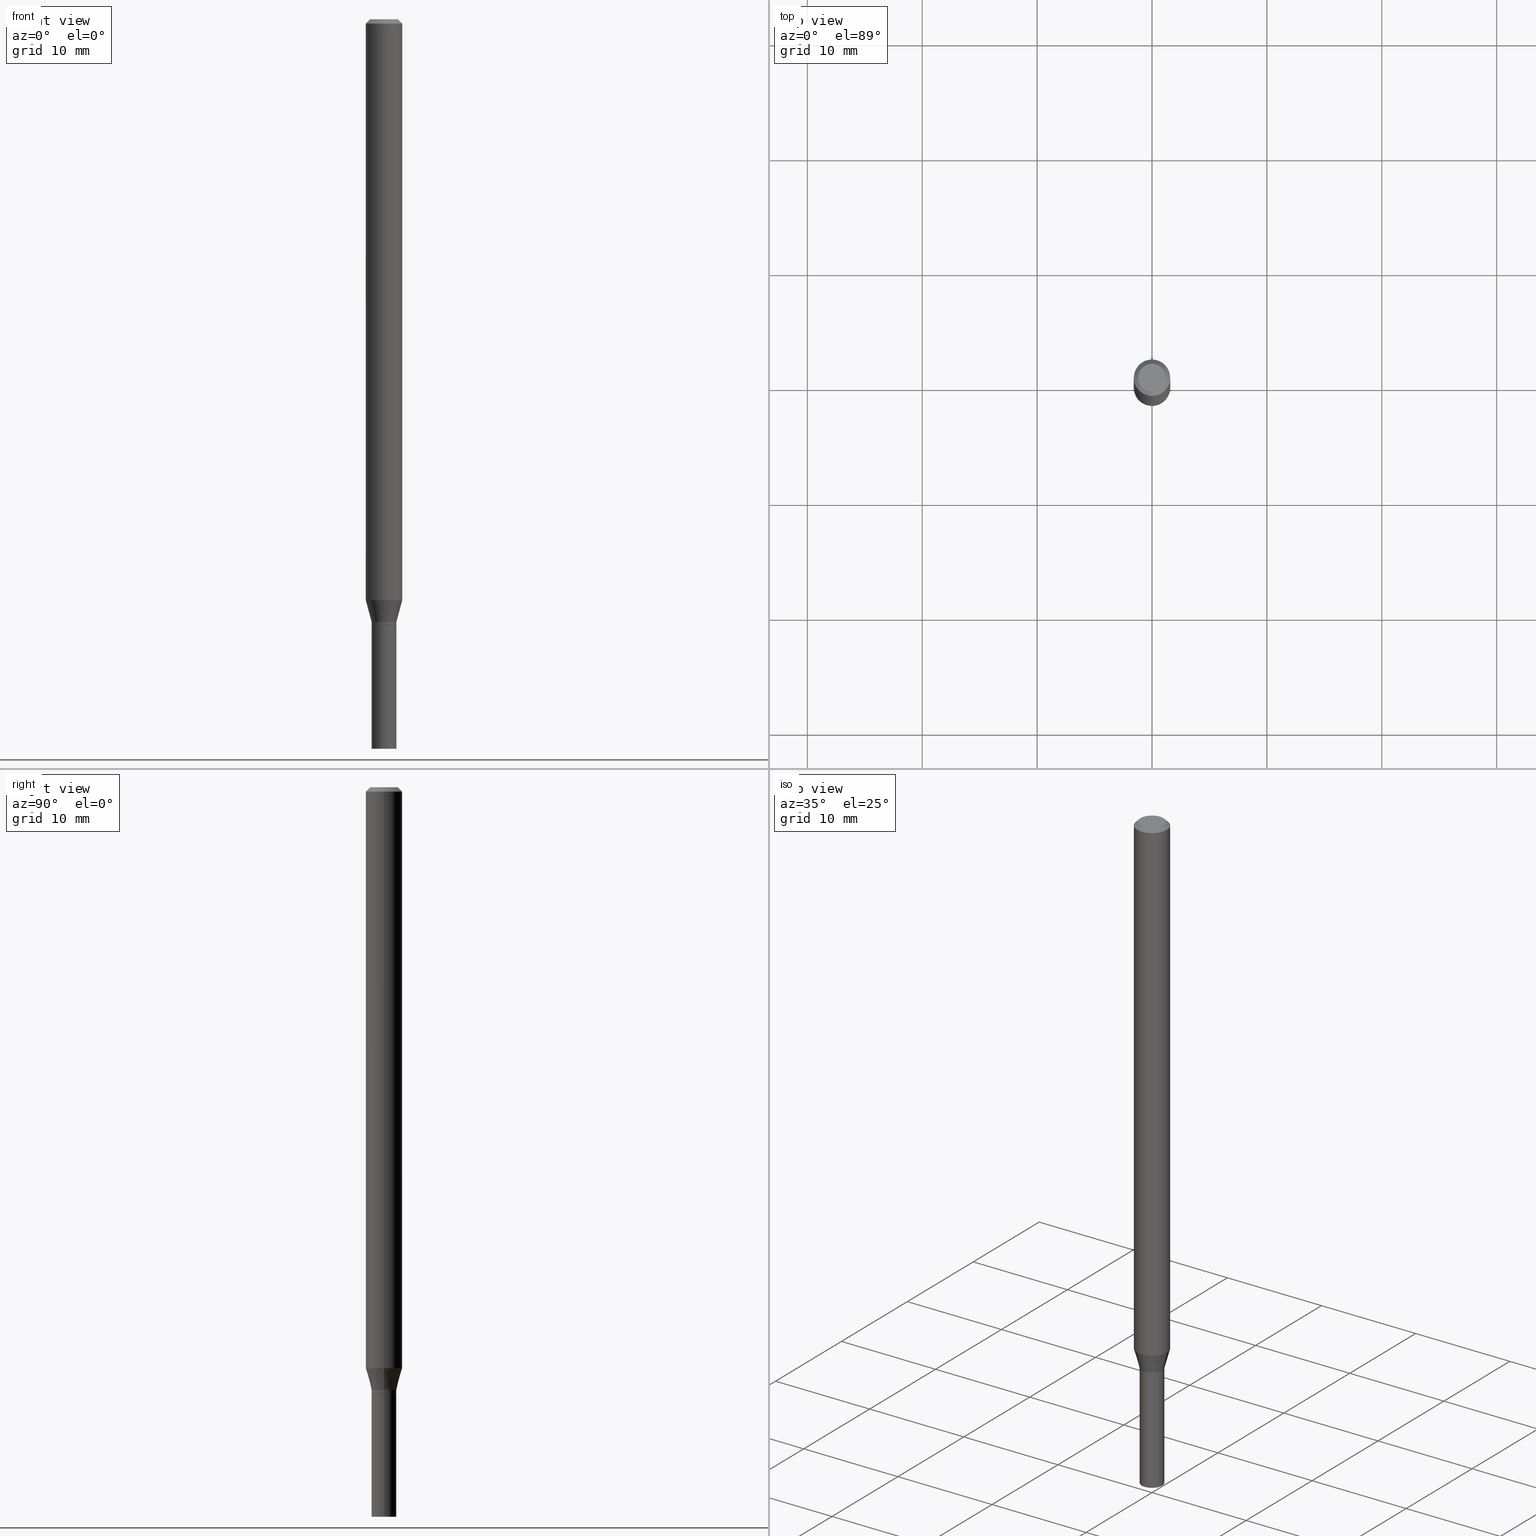
[diagram: canonical four-view strip — front | top / right | iso, engineering-drawing reading convention]
A machine part, canonical four-view strip (front | top / right | iso — engineering-drawing reading convention). The complete STEP part file that produces these views, byte-faithful:
ISO-10303-21;
HEADER;
FILE_DESCRIPTION (( 'STEP AP203' ),
    '1' );
FILE_NAME ('00603.STEP',
    '2024-03-19T21:58:56',
    ( '' ),
    ( '' ),
    'SwSTEP 2.0',
    'SolidWorks 2023',
    '' );
FILE_SCHEMA (( 'CONFIG_CONTROL_DESIGN' ));
ENDSEC;

DATA;
#1 = VECTOR ( 'NONE', #4, 39.37007874015748854 ) ;
#2 = DIRECTION ( 'NONE',  ( -2.445468806185136597E-29, 3.491481338843145583E-15, 1.000000000000000000 ) ) ;
#3 = LINE ( 'NONE', #148, #1 ) ;
#4 = DIRECTION ( 'NONE',  ( -0.2588190451025212391, 5.211531920934549464E-15, 0.9659258262890679791 ) ) ;
#5 = ORIENTED_EDGE ( 'NONE', *, *, #236, .F. ) ;
#6 = DIRECTION ( 'NONE',  ( 1.000000000000000000, -6.982962677686276177E-15, 0.000000000000000000 ) ) ;
#7 = CIRCLE ( 'NONE', #415, 0.06250000000000000000 ) ;
#8 = EDGE_CURVE ( 'NONE', #412, #210, #327, .T. ) ;
#9 = CARTESIAN_POINT ( 'NONE',  ( 4.867360808112149424E-29, -6.949301249706266959E-15, -1.990358983848621310 ) ) ;
#10 = DIMENSIONAL_EXPONENTS ( 1.000000000000000000, 0.000000000000000000, 0.000000000000000000, 0.000000000000000000, 0.000000000000000000, 0.000000000000000000, 0.000000000000000000 ) ;
#11 = CARTESIAN_POINT ( 'NONE',  ( 0.04249999999999991979, -2.967759138016658126E-16, 2.072375129713268648E-30 ) ) ;
#12 = ADVANCED_FACE ( 'NONE', ( #108 ), #282, .F. ) ;
#13 = DATE_AND_TIME ( #345, #347 ) ;
#14 = AXIS2_PLACEMENT_3D ( 'NONE', #295, #402, #326 ) ;
#15 = COORDINATED_UNIVERSAL_TIME_OFFSET ( 5, 0, .BEHIND. ) ;
#16 = CC_DESIGN_DATE_AND_TIME_ASSIGNMENT ( #452, #417, ( #103 ) ) ;
#17 = APPROVAL_STATUS ( 'not_yet_approved' ) ;
#18 = EDGE_LOOP ( 'NONE', ( #433, #146, #126, #177 ) ) ;
#19 = DIRECTION ( 'NONE',  ( -2.445468806185136597E-29, 3.491481338843145583E-15, 1.000000000000000000 ) ) ;
#20 = DATE_AND_TIME ( #59, #426 ) ;
#21 = EDGE_LOOP ( 'NONE', ( #319, #381 ) ) ;
#22 = EDGE_CURVE ( 'NONE', #412, #453, #354, .T. ) ;
#23 = CONICAL_SURFACE ( 'NONE', #45, 0.04199999999999999567, 0.7853981633980202659 ) ;
#24 = CONICAL_SURFACE ( 'NONE', #337, 0.06250000000000000000, 0.7853981633974512766 ) ;
#25 = FACE_OUTER_BOUND ( 'NONE', #362, .T. ) ;
#26 = CARTESIAN_POINT ( 'NONE',  ( 0.000000000000000000, 0.000000000000000000, 0.000000000000000000 ) ) ;
#27 = ORIENTED_EDGE ( 'NONE', *, *, #74, .T. ) ;
#28 = DIRECTION ( 'NONE',  ( 1.000000000000000000, -6.982962677686266711E-15, 0.000000000000000000 ) ) ;
#29 = DIRECTION ( 'NONE',  ( -2.445468806185136597E-29, 3.491481338843145583E-15, 1.000000000000000000 ) ) ;
#30 = AXIS2_PLACEMENT_3D ( 'NONE', #72, #213, #438 ) ;
#31 = AXIS2_PLACEMENT_3D ( 'NONE', #249, #119, #290 ) ;
#32 = CARTESIAN_POINT ( 'NONE',  ( 5.074347772834158663E-29, -7.244823778099526956E-15, -2.075000000000000178 ) ) ;
#33 = ADVANCED_FACE ( 'NONE', ( #356 ), #428, .F. ) ;
#34 = ORIENTED_EDGE ( 'NONE', *, *, #389, .F. ) ;
#35 = EDGE_LOOP ( 'NONE', ( #343, #66, #240, #376 ) ) ;
#36 = CARTESIAN_POINT ( 'NONE',  ( 0.06250000000000000000, -4.888073874380388472E-16, -0.01499999999999999944 ) ) ;
#37 = PRODUCT_RELATED_PRODUCT_CATEGORY ( 'detail', '', ( #201 ) ) ;
#38 = CC_DESIGN_APPROVAL ( #437, ( #83 ) ) ;
#39 = DIRECTION ( 'NONE',  ( 1.000000000000000000, -6.982962677686276177E-15, 0.000000000000000000 ) ) ;
#40 = EDGE_CURVE ( 'NONE', #341, #143, #175, .T. ) ;
#41 = CARTESIAN_POINT ( 'NONE',  ( -0.04249999999999999611, -7.684782899905652708E-15, -2.075000000000000178 ) ) ;
#42 = DIRECTION ( 'NONE',  ( -2.445468806185136597E-29, 3.491481338843145583E-15, 1.000000000000000000 ) ) ;
#43 = CARTESIAN_POINT ( 'NONE',  ( -0.04199999999999999567, -6.946395829080283824E-15, -2.074999999999999734 ) ) ;
#44 = APPLICATION_PROTOCOL_DEFINITION ( 'international standard', 'config_control_design', 1994, #178 ) ;
#45 = AXIS2_PLACEMENT_3D ( 'NONE', #102, #358, #390 ) ;
#46 = VERTEX_POINT ( 'NONE', #424 ) ;
#47 = CC_DESIGN_APPROVAL ( #76, ( #120 ) ) ;
#48 = FACE_OUTER_BOUND ( 'NONE', #77, .T. ) ;
#49 = LENGTH_MEASURE_WITH_UNIT ( LENGTH_MEASURE( 0.02539999999999999897 ), #441 );
#50 = EDGE_CURVE ( 'NONE', #446, #260, #7, .T. ) ;
#51 = DATE_AND_TIME ( #90, #216 ) ;
#52 = ORIENTED_EDGE ( 'NONE', *, *, #138, .T. ) ;
#53 = AXIS2_PLACEMENT_3D ( 'NONE', #9, #318, #254 ) ;
#54 = AXIS2_PLACEMENT_3D ( 'NONE', #401, #42, #6 ) ;
#55 = ADVANCED_FACE ( 'NONE', ( #463 ), #23, .T. ) ;
#56 = CARTESIAN_POINT ( 'NONE',  ( 3.668203209277705088E-31, -5.237222008264718399E-17, -0.01499999999999999944 ) ) ;
#57 = DIRECTION ( 'NONE',  ( 2.445468806185136597E-29, -3.491481338843145583E-15, -1.000000000000000000 ) ) ;
#58 = ORIENTED_EDGE ( 'NONE', *, *, #154, .T. ) ;
#59 = CALENDAR_DATE ( 2024, 19, 3 ) ;
#60 = EDGE_LOOP ( 'NONE', ( #217, #331, #197, #340 ) ) ;
#61 = AXIS2_PLACEMENT_3D ( 'NONE', #79, #365, #257 ) ;
#62 = DIRECTION ( 'NONE',  ( -2.445468806185136877E-29, 3.491481338843145188E-15, 1.000000000000000000 ) ) ;
#63 = CIRCLE ( 'NONE', #328, 0.04749999999999999362 ) ;
#64 = DIRECTION ( 'NONE',  ( 1.000000000000000000, -6.982962677686265922E-15, 4.876176775795935793E-29 ) ) ;
#65 = EDGE_CURVE ( 'NONE', #158, #446, #139, .T. ) ;
#66 = ORIENTED_EDGE ( 'NONE', *, *, #243, .T. ) ;
#67 = DIRECTION ( 'NONE',  ( -0.7071067811865496822, 2.468850131082278754E-15, -0.7071067811865454633 ) ) ;
#68 = MANIFOLD_SOLID_BREP ( 'Body-Move/Copy2[2]', #299 ) ;
#69 = EDGE_CURVE ( 'NONE', #210, #412, #187, .T. ) ;
#70 = CARTESIAN_POINT ( 'NONE',  ( 0.06250000000000000000, -4.364351673553916694E-16, 3.047610484872459871E-30 ) ) ;
#71 = EDGE_CURVE ( 'NONE', #97, #143, #408, .T. ) ;
#72 = CARTESIAN_POINT ( 'NONE',  ( 5.073125038431066982E-29, -7.243078037430106241E-15, -2.074500000000000011 ) ) ;
#73 = CARTESIAN_POINT ( 'NONE',  ( 0.04749999999999999362, -4.035134999187580102E-16, -8.451572774957450897E-17 ) ) ;
#74 = EDGE_CURVE ( 'NONE', #245, #260, #242, .T. ) ;
#75 = PLANE ( 'NONE',  #61 ) ;
#76 = APPROVAL ( #17, 'UNSPECIFIED' ) ;
#77 = EDGE_LOOP ( 'NONE', ( #268, #199, #266, #5 ) ) ;
#78 = CARTESIAN_POINT ( 'NONE',  ( -0.04250000000000019734, -6.941097374732062211E-15, -2.074500000000000011 ) ) ;
#79 = CARTESIAN_POINT ( 'NONE',  ( 3.316907271900976096E-16, 0.04749999999999999362, -2.081032274698379328E-16 ) ) ;
#80 = CARTESIAN_POINT ( 'NONE',  ( 2.066805758436263276E-45, -2.950850862763961857E-31, -8.451572774957708509E-17 ) ) ;
#81 = DIRECTION ( 'NONE',  ( 1.000000000000000000, -6.982962677686263555E-15, 0.000000000000000000 ) ) ;
#82 = CARTESIAN_POINT ( 'NONE',  ( 0.04250000000000019734, -7.539853951231772892E-15, -2.074500000000000011 ) ) ;
#83 = PRODUCT_DEFINITION_FORMATION_WITH_SPECIFIED_SOURCE ( 'ANY', '', #201, .NOT_KNOWN. ) ;
#84 = ORIENTED_EDGE ( 'NONE', *, *, #179, .F. ) ;
#85 = EDGE_LOOP ( 'NONE', ( #121, #449 ) ) ;
#86 = PERSON_AND_ORGANIZATION_ROLE ( 'creator' ) ;
#87 = DIRECTION ( 'NONE',  ( -2.445468806185136597E-29, 3.491481338843145583E-15, 1.000000000000000000 ) ) ;
#88 = ORIENTED_EDGE ( 'NONE', *, *, #350, .F. ) ;
#89 = CYLINDRICAL_SURFACE ( 'NONE', #432, 0.04249999999999991979 ) ;
#90 = CALENDAR_DATE ( 2024, 19, 3 ) ;
#91 = DIRECTION ( 'NONE',  ( -2.445468806185136877E-29, 3.491481338843145188E-15, 1.000000000000000000 ) ) ;
#92 = VECTOR ( 'NONE', #405, 39.37007874015748143 ) ;
#93 = VECTOR ( 'NONE', #91, 39.37007874015748143 ) ;
#94 = PERSON_AND_ORGANIZATION ( #135, #289 ) ;
#95 = VERTEX_POINT ( 'NONE', #359 ) ;
#96 = DIRECTION ( 'NONE',  ( 1.000000000000000000, -6.982962677686266711E-15, 0.000000000000000000 ) ) ;
#97 = VERTEX_POINT ( 'NONE', #136 ) ;
#98 = PERSON_AND_ORGANIZATION ( #135, #289 ) ;
#99 = PERSON_AND_ORGANIZATION ( #135, #289 ) ;
#100 = CARTESIAN_POINT ( 'NONE',  ( 0.000000000000000000, 0.000000000000000000, 0.000000000000000000 ) ) ;
#101 = ADVANCED_FACE ( 'NONE', ( #316 ), #237, .T. ) ;
#102 = CARTESIAN_POINT ( 'NONE',  ( 5.074347772834157541E-29, -7.244823778099525378E-15, -2.074999999999999734 ) ) ;
#103 = PRODUCT_DEFINITION ( 'UNKNOWN', '', #83, #309 ) ;
#104 = DIRECTION ( 'NONE',  ( -2.445468806185136877E-29, 3.491481338843145188E-15, 1.000000000000000000 ) ) ;
#105 = DIRECTION ( 'NONE',  ( -2.438088387897960049E-29, 3.491481338843145188E-15, 1.000000000000000000 ) ) ;
#106 = DIRECTION ( 'NONE',  ( 1.000000000000000000, -6.982962677686264344E-15, 0.000000000000000000 ) ) ;
#107 = CC_DESIGN_PERSON_AND_ORGANIZATION_ASSIGNMENT ( #227, #86, ( #83 ) ) ;
#108 = FACE_OUTER_BOUND ( 'NONE', #353, .T. ) ;
#109 = EDGE_LOOP ( 'NONE', ( #396, #200, #262, #264 ) ) ;
#110 = CARTESIAN_POINT ( 'NONE',  ( 0.000000000000000000, 0.000000000000000000, 0.000000000000000000 ) ) ;
#111 = ORIENTED_EDGE ( 'NONE', *, *, #138, .F. ) ;
#112 = DIRECTION ( 'NONE',  ( 1.000000000000000000, -6.982962677686263555E-15, 0.000000000000000000 ) ) ;
#113 = CLOSED_SHELL ( 'NONE', ( #261, #131, #118, #12 ) ) ;
#114 = AXIS2_PLACEMENT_3D ( 'NONE', #223, #218, #367 ) ;
#115 = DIRECTION ( 'NONE',  ( -2.445468806185136877E-29, 3.491481338843145188E-15, 1.000000000000000000 ) ) ;
#116 = DIRECTION ( 'NONE',  ( 1.000000000000000000, -6.982962677686263555E-15, 0.000000000000000000 ) ) ;
#117 = DIRECTION ( 'NONE',  ( 1.000000000000000000, -6.982962677686265922E-15, 4.876176775795935793E-29 ) ) ;
#118 = ADVANCED_FACE ( 'NONE', ( #207 ), #238, .T. ) ;
#119 = DIRECTION ( 'NONE',  ( -2.445468806185136597E-29, 3.491481338843145583E-15, 1.000000000000000000 ) ) ;
#120 = SECURITY_CLASSIFICATION ( '', '', #193 ) ;
#121 = ORIENTED_EDGE ( 'NONE', *, *, #357, .T. ) ;
#122 = EDGE_CURVE ( 'NONE', #143, #97, #391, .T. ) ;
#123 = EDGE_LOOP ( 'NONE', ( #397, #313, #301, #88 ) ) ;
#124 = CALENDAR_DATE ( 2024, 19, 3 ) ;
#125 = CARTESIAN_POINT ( 'NONE',  ( 2.066805758436263276E-45, -2.950850862763961857E-31, -8.451572774957708509E-17 ) ) ;
#126 = ORIENTED_EDGE ( 'NONE', *, *, #429, .T. ) ;
#127 = CARTESIAN_POINT ( 'NONE',  ( -0.06250000000000000000, 4.440892098500626162E-16, -3.074334431409316114E-30 ) ) ;
#128 = DIRECTION ( 'NONE',  ( -2.445468806185136597E-29, 3.491481338843145583E-15, 1.000000000000000000 ) ) ;
#129 = ADVANCED_BREP_SHAPE_REPRESENTATION ( '00603', ( #222, #68, #198 ), #162 ) ;
#130 = PRODUCT_DEFINITION_SHAPE ( 'NONE', 'NONE',  #103 ) ;
#131 = ADVANCED_FACE ( 'NONE', ( #460 ), #214, .F. ) ;
#132 = CARTESIAN_POINT ( 'NONE',  ( 0.04249999999999999611, -9.025479260909530016E-15, -2.500000000000000000 ) ) ;
#133 = CARTESIAN_POINT ( 'NONE',  ( 2.967759138017170885E-16, 0.04249999999999275191, -2.075000000000000622 ) ) ;
#134 = AXIS2_PLACEMENT_3D ( 'NONE', #155, #444, #116 ) ;
#135 = PERSON ( 'UNSPECIFIED', 'UNSPECIFIED', 'UNSPECIFIED', ('UNSPECIFIED'), ('UNSPECIFIED'), ('UNSPECIFIED') ) ;
#136 = CARTESIAN_POINT ( 'NONE',  ( 0.04249999999999964917, -7.506684878512758802E-15, -2.064999999999999947 ) ) ;
#137 = AXIS2_PLACEMENT_3D ( 'NONE', #110, #247, #395 ) ;
#138 = EDGE_CURVE ( 'NONE', #143, #393, #3, .T. ) ;
#139 = LINE ( 'NONE', #427, #303 ) ;
#140 = DIRECTION ( 'NONE',  ( 1.000000000000000000, -6.982962677686254089E-15, 0.000000000000000000 ) ) ;
#141 = CC_DESIGN_PERSON_AND_ORGANIZATION_ASSIGNMENT ( #98, #333, ( #120 ) ) ;
#142 = DIRECTION ( 'NONE',  ( -2.445468806185136597E-29, 3.491481338843145583E-15, 1.000000000000000000 ) ) ;
#143 = VERTEX_POINT ( 'NONE', #288 ) ;
#144 = CC_DESIGN_SECURITY_CLASSIFICATION ( #120, ( #83 ) ) ;
#145 = LINE ( 'NONE', #440, #252 ) ;
#146 = ORIENTED_EDGE ( 'NONE', *, *, #332, .T. ) ;
#147 = FACE_OUTER_BOUND ( 'NONE', #18, .T. ) ;
#148 = CARTESIAN_POINT ( 'NONE',  ( -0.04249999999999964917, -6.907928302013055220E-15, -2.064999999999999947 ) ) ;
#149 = VECTOR ( 'NONE', #186, 39.37007874015748854 ) ;
#150 = DIRECTION ( 'NONE',  ( 1.000000000000000000, -6.982962677686266711E-15, 4.876176775795935793E-29 ) ) ;
#151 = ORIENTED_EDGE ( 'NONE', *, *, #357, .F. ) ;
#152 = CYLINDRICAL_SURFACE ( 'NONE', #259, 0.06250000000000000000 ) ;
#153 = CARTESIAN_POINT ( 'NONE',  ( 0.06250000000000000000, -7.385736417061658629E-15, -1.990358983848621310 ) ) ;
#154 = EDGE_CURVE ( 'NONE', #95, #334, #145, .T. ) ;
#155 = CARTESIAN_POINT ( 'NONE',  ( 5.074347772834157541E-29, -7.244823778099525378E-15, -2.074999999999999734 ) ) ;
#156 = ADVANCED_FACE ( 'NONE', ( #286 ), #363, .T. ) ;
#157 = CARTESIAN_POINT ( 'NONE',  ( 0.000000000000000000, 0.000000000000000000, 0.000000000000000000 ) ) ;
#158 = VERTEX_POINT ( 'NONE', #220 ) ;
#159 = COORDINATED_UNIVERSAL_TIME_OFFSET ( 5, 0, .BEHIND. ) ;
#160 = EDGE_CURVE ( 'NONE', #95, #46, #275, .T. ) ;
#161 = EDGE_LOOP ( 'NONE', ( #225, #151, #250, #291 ) ) ;
#162 =( GEOMETRIC_REPRESENTATION_CONTEXT ( 3 ) GLOBAL_UNCERTAINTY_ASSIGNED_CONTEXT ( ( #443 ) ) GLOBAL_UNIT_ASSIGNED_CONTEXT ( ( #285, #182, #322 ) ) REPRESENTATION_CONTEXT ( 'NONE', 'WORKASPACE' ) );
#163 = EDGE_CURVE ( 'NONE', #334, #341, #398, .T. ) ;
#164 = ORIENTED_EDGE ( 'NONE', *, *, #450, .F. ) ;
#165 = ORIENTED_EDGE ( 'NONE', *, *, #202, .F. ) ;
#166 = AXIS2_PLACEMENT_3D ( 'NONE', #80, #87, #418 ) ;
#167 = PERSON_AND_ORGANIZATION_ROLE ( 'design_owner' ) ;
#168 = DIRECTION ( 'NONE',  ( 0.2588190451025212391, 1.565188264969622362E-15, 0.9659258262890679791 ) ) ;
#169 = DIRECTION ( 'NONE',  ( -2.445468806185136597E-29, 3.491481338843145583E-15, 1.000000000000000000 ) ) ;
#170 = CARTESIAN_POINT ( 'NONE',  ( 3.668203209277705088E-31, -5.237222008264718399E-17, -0.01499999999999999944 ) ) ;
#171 = ADVANCED_FACE ( 'NONE', ( #321 ), #75, .F. ) ;
#172 = AXIS2_PLACEMENT_3D ( 'NONE', #372, #370, #330 ) ;
#173 = DIRECTION ( 'NONE',  ( 1.000000000000000000, -6.982962677686264344E-15, 0.000000000000000000 ) ) ;
#174 = CARTESIAN_POINT ( 'NONE',  ( 6.113672015462842613E-29, -8.728703347107864943E-15, -2.500000000000000000 ) ) ;
#175 = LINE ( 'NONE', #310, #270 ) ;
#176 = CARTESIAN_POINT ( 'NONE',  ( 6.198122052593289668E-29, -8.607766087339451973E-15, -2.500000000000000000 ) ) ;
#177 = ORIENTED_EDGE ( 'NONE', *, *, #65, .F. ) ;
#178 = APPLICATION_CONTEXT ( 'configuration controlled 3d designs of mechanical parts and assemblies' ) ;
#179 = EDGE_CURVE ( 'NONE', #393, #245, #196, .T. ) ;
#180 = CARTESIAN_POINT ( 'NONE',  ( 5.074347772834157541E-29, -7.244823778099525378E-15, -2.074999999999999734 ) ) ;
#181 = CC_DESIGN_PERSON_AND_ORGANIZATION_ASSIGNMENT ( #99, #167, ( #201 ) ) ;
#182 =( NAMED_UNIT ( * ) PLANE_ANGLE_UNIT ( ) SI_UNIT ( $, .RADIAN. ) );
#183 = LINE ( 'NONE', #323, #224 ) ;
#184 = DIRECTION ( 'NONE',  ( 0.7071067811869518049, -2.468850131086492060E-15, 0.7071067811861430075 ) ) ;
#185 = CARTESIAN_POINT ( 'NONE',  ( 0.000000000000000000, 0.000000000000000000, 0.000000000000000000 ) ) ;
#186 = DIRECTION ( 'NONE',  ( -0.7071067811869518049, 7.493145998871813553E-15, 0.7071067811861430075 ) ) ;
#187 = CIRCLE ( 'NONE', #280, 0.04249999999999999611 ) ;
#188 = VECTOR ( 'NONE', #292, 39.37007874015748143 ) ;
#189 = DIRECTION ( 'NONE',  ( 0.000000000000000000, 0.000000000000000000, 1.000000000000000000 ) ) ;
#190 = CONICAL_SURFACE ( 'NONE', #392, 0.04199999999999999567, 0.7853981633980202659 ) ;
#191 = FACE_OUTER_BOUND ( 'NONE', #349, .T. ) ;
#192 = VERTEX_POINT ( 'NONE', #73 ) ;
#193 = SECURITY_CLASSIFICATION_LEVEL ( 'unclassified' ) ;
#194 = ORIENTED_EDGE ( 'NONE', *, *, #202, .T. ) ;
#195 = CALENDAR_DATE ( 2024, 19, 3 ) ;
#196 = CIRCLE ( 'NONE', #53, 0.06250000000000000000 ) ;
#197 = ORIENTED_EDGE ( 'NONE', *, *, #236, .T. ) ;
#198 = AXIS2_PLACEMENT_3D ( 'NONE', #185, #189, #329 ) ;
#199 = ORIENTED_EDGE ( 'NONE', *, *, #40, .T. ) ;
#200 = ORIENTED_EDGE ( 'NONE', *, *, #389, .T. ) ;
#201 = PRODUCT ( '00603', '00603', '', ( #406 ) ) ;
#202 = EDGE_CURVE ( 'NONE', #453, #204, #311, .T. ) ;
#203 = APPROVAL_STATUS ( 'not_yet_approved' ) ;
#204 = VERTEX_POINT ( 'NONE', #41 ) ;
#205 = AXIS2_PLACEMENT_3D ( 'NONE', #465, #142, #384 ) ;
#206 = CIRCLE ( 'NONE', #166, 0.04749999999999999362 ) ;
#207 = FACE_OUTER_BOUND ( 'NONE', #123, .T. ) ;
#208 = DIRECTION ( 'NONE',  ( 2.438088387897960049E-29, -3.491481338843145188E-15, -1.000000000000000000 ) ) ;
#209 = EDGE_LOOP ( 'NONE', ( #34, #294, #27, #348 ) ) ;
#210 = VERTEX_POINT ( 'NONE', #394 ) ;
#211 = LOCAL_TIME ( 17, 58, 56.00000000000000000, #15 ) ;
#212 = DIRECTION ( 'NONE',  ( -2.445468806185136877E-29, 3.491481338843145188E-15, 1.000000000000000000 ) ) ;
#213 = DIRECTION ( 'NONE',  ( -2.445468806185136597E-29, 3.491481338843145583E-15, 1.000000000000000000 ) ) ;
#214 = PLANE ( 'NONE',  #258 ) ;
#215 = AXIS2_PLACEMENT_3D ( 'NONE', #461, #430, #106 ) ;
#216 = LOCAL_TIME ( 17, 58, 56.00000000000000000, #234 ) ;
#217 = ORIENTED_EDGE ( 'NONE', *, *, #40, .F. ) ;
#218 = DIRECTION ( 'NONE',  ( 2.445468806185136597E-29, -3.491481338843145583E-15, -1.000000000000000000 ) ) ;
#219 = ORIENTED_EDGE ( 'NONE', *, *, #71, .T. ) ;
#220 = CARTESIAN_POINT ( 'NONE',  ( -0.04749999999999999362, 3.578768372314209027E-16, -8.451572774957950098E-17 ) ) ;
#221 = CARTESIAN_POINT ( 'NONE',  ( -0.06250000000000000000, -3.056747525044394995E-15, -0.01499999999999999944 ) ) ;
#222 = MANIFOLD_SOLID_BREP ( 'Body-Move/Copy2[1]', #113 ) ;
#223 = CARTESIAN_POINT ( 'NONE',  ( 3.668203209277705088E-31, -5.237222008264718399E-17, -0.01499999999999999944 ) ) ;
#224 = VECTOR ( 'NONE', #115, 39.37007874015748143 ) ;
#225 = ORIENTED_EDGE ( 'NONE', *, *, #332, .F. ) ;
#226 = PERSON_AND_ORGANIZATION_ROLE ( 'creator' ) ;
#227 = PERSON_AND_ORGANIZATION ( #135, #289 ) ;
#228 = CIRCLE ( 'NONE', #30, 0.04250000000000019734 ) ;
#229 = DIRECTION ( 'NONE',  ( -2.445468806185136597E-29, 3.491481338843145583E-15, 1.000000000000000000 ) ) ;
#230 = VECTOR ( 'NONE', #168, 39.37007874015748854 ) ;
#231 = APPROVAL_ROLE ( '' ) ;
#232 = EDGE_CURVE ( 'NONE', #341, #334, #228, .T. ) ;
#233 = ORIENTED_EDGE ( 'NONE', *, *, #410, .T. ) ;
#234 = COORDINATED_UNIVERSAL_TIME_OFFSET ( 5, 0, .BEHIND. ) ;
#235 = DIRECTION ( 'NONE',  ( -2.445468806185136597E-29, 3.491481338843145583E-15, 1.000000000000000000 ) ) ;
#236 = EDGE_CURVE ( 'NONE', #334, #97, #361, .T. ) ;
#237 = CYLINDRICAL_SURFACE ( 'NONE', #205, 0.04249999999999991979 ) ;
#238 = CYLINDRICAL_SURFACE ( 'NONE', #462, 0.04249999999999999611 ) ;
#239 = CC_DESIGN_PERSON_AND_ORGANIZATION_ASSIGNMENT ( #306, #226, ( #103 ) ) ;
#240 = ORIENTED_EDGE ( 'NONE', *, *, #163, .F. ) ;
#241 = AXIS2_PLACEMENT_3D ( 'NONE', #133, #208, #274 ) ;
#242 = LINE ( 'NONE', #70, #346 ) ;
#243 = EDGE_CURVE ( 'NONE', #46, #341, #284, .T. ) ;
#244 = CARTESIAN_POINT ( 'NONE',  ( 5.074347772834158663E-29, -7.244823778099526956E-15, -2.075000000000000178 ) ) ;
#245 = VERTEX_POINT ( 'NONE', #153 ) ;
#246 = CC_DESIGN_DATE_AND_TIME_ASSIGNMENT ( #13, #382, ( #120 ) ) ;
#247 = DIRECTION ( 'NONE',  ( -2.445468806185136597E-29, 3.491481338843145583E-15, 1.000000000000000000 ) ) ;
#248 = EDGE_LOOP ( 'NONE', ( #420, #466, #165, #380 ) ) ;
#249 = CARTESIAN_POINT ( 'NONE',  ( 4.867360808112149424E-29, -6.949301249706266959E-15, -1.990358983848621310 ) ) ;
#250 = ORIENTED_EDGE ( 'NONE', *, *, #65, .T. ) ;
#251 = DIRECTION ( 'NONE',  ( -2.438088387897960049E-29, 3.491481338843145188E-15, 1.000000000000000000 ) ) ;
#252 = VECTOR ( 'NONE', #184, 39.37007874015748854 ) ;
#253 = CONICAL_SURFACE ( 'NONE', #305, 0.04249999999999964917, 0.2617993877991499629 ) ;
#254 = DIRECTION ( 'NONE',  ( 1.000000000000000000, -6.982962677686262766E-15, 0.000000000000000000 ) ) ;
#255 = CC_DESIGN_PERSON_AND_ORGANIZATION_ASSIGNMENT ( #378, #385, ( #83 ) ) ;
#256 = DIRECTION ( 'NONE',  ( -2.445468806185136597E-29, 3.491481338843145583E-15, 1.000000000000000000 ) ) ;
#257 = DIRECTION ( 'NONE',  ( -1.000000000000000000, 6.982962677686265922E-15, -4.876176775795935793E-29 ) ) ;
#258 = AXIS2_PLACEMENT_3D ( 'NONE', #176, #251, #117 ) ;
#259 = AXIS2_PLACEMENT_3D ( 'NONE', #157, #256, #297 ) ;
#260 = VERTEX_POINT ( 'NONE', #36 ) ;
#261 = ADVANCED_FACE ( 'NONE', ( #435 ), #324, .T. ) ;
#262 = ORIENTED_EDGE ( 'NONE', *, *, #429, .F. ) ;
#263 = PERSON_AND_ORGANIZATION ( #135, #289 ) ;
#264 = ORIENTED_EDGE ( 'NONE', *, *, #74, .F. ) ;
#265 = CARTESIAN_POINT ( 'NONE',  ( 5.049893084772307117E-29, -7.209908964711095307E-15, -2.064999999999999947 ) ) ;
#266 = ORIENTED_EDGE ( 'NONE', *, *, #71, .F. ) ;
#267 = COORDINATED_UNIVERSAL_TIME_OFFSET ( 5, 0, .BEHIND. ) ;
#268 = ORIENTED_EDGE ( 'NONE', *, *, #163, .T. ) ;
#269 = APPROVAL_ROLE ( '' ) ;
#270 = VECTOR ( 'NONE', #212, 39.37007874015748143 ) ;
#271 = APPROVAL_PERSON_ORGANIZATION ( #94, #76, #231 ) ;
#272 = APPROVAL_DATE_TIME ( #51, #283 ) ;
#273 = FACE_OUTER_BOUND ( 'NONE', #109, .T. ) ;
#274 = DIRECTION ( 'NONE',  ( -1.000000000000000000, 6.982962677686265922E-15, -4.876176775795935793E-29 ) ) ;
#275 = CIRCLE ( 'NONE', #134, 0.04199999999999999567 ) ;
#276 = EDGE_CURVE ( 'NONE', #46, #95, #456, .T. ) ;
#277 = CARTESIAN_POINT ( 'NONE',  ( 6.113672015462842613E-29, -8.728703347107864943E-15, -2.500000000000000000 ) ) ;
#278 = DIRECTION ( 'NONE',  ( 1.000000000000000000, -6.982962677686254089E-15, 0.000000000000000000 ) ) ;
#279 = CARTESIAN_POINT ( 'NONE',  ( 0.04249999999999999611, -2.967759138016663549E-16, 2.072375129713272502E-30 ) ) ;
#280 = AXIS2_PLACEMENT_3D ( 'NONE', #174, #315, #140 ) ;
#281 = CC_DESIGN_APPROVAL ( #283, ( #103 ) ) ;
#282 = PLANE ( 'NONE',  #241 ) ;
#283 = APPROVAL ( #203, 'UNSPECIFIED' ) ;
#284 = LINE ( 'NONE', #43, #149 ) ;
#285 =( CONVERSION_BASED_UNIT ( 'INCH', #49 ) LENGTH_UNIT ( ) NAMED_UNIT ( #10 ) );
#286 = FACE_OUTER_BOUND ( 'NONE', #375, .T. ) ;
#287 = DIRECTION ( 'NONE',  ( 1.000000000000000000, -6.982962677686267499E-15, 4.876176775795935232E-29 ) ) ;
#288 = CARTESIAN_POINT ( 'NONE',  ( -0.04249999999999964917, -6.706570170934630176E-15, -2.064999999999999947 ) ) ;
#289 = ORGANIZATION ( 'UNSPECIFIED', 'UNSPECIFIED', '' ) ;
#290 = DIRECTION ( 'NONE',  ( 1.000000000000000000, -6.982962677686262766E-15, 0.000000000000000000 ) ) ;
#291 = ORIENTED_EDGE ( 'NONE', *, *, #50, .T. ) ;
#292 = DIRECTION ( 'NONE',  ( 0.7071067811865496822, -7.319954787623263934E-15, -0.7071067811865454633 ) ) ;
#293 = CARTESIAN_POINT ( 'NONE',  ( 5.074347772834157541E-29, -7.244823778099525378E-15, -2.074999999999999734 ) ) ;
#294 = ORIENTED_EDGE ( 'NONE', *, *, #179, .T. ) ;
#295 = CARTESIAN_POINT ( 'NONE',  ( 5.049893084772307117E-29, -7.209908964711095307E-15, -2.064999999999999947 ) ) ;
#296 = ADVANCED_FACE ( 'NONE', ( #191 ), #190, .T. ) ;
#297 = DIRECTION ( 'NONE',  ( 1.000000000000000000, -6.982962677686266711E-15, 4.876176775795935793E-29 ) ) ;
#298 = ORIENTED_EDGE ( 'NONE', *, *, #160, .F. ) ;
#299 = CLOSED_SHELL ( 'NONE', ( #320, #55, #314, #434, #156, #403, #355, #383, #171, #33, #296, #101 ) ) ;
#300 = APPROVAL_DATE_TIME ( #20, #76 ) ;
#301 = ORIENTED_EDGE ( 'NONE', *, *, #22, .T. ) ;
#302 = LINE ( 'NONE', #344, #230 ) ;
#303 = VECTOR ( 'NONE', #67, 39.37007874015748143 ) ;
#304 = APPROVAL_STATUS ( 'not_yet_approved' ) ;
#305 = AXIS2_PLACEMENT_3D ( 'NONE', #265, #229, #379 ) ;
#306 = PERSON_AND_ORGANIZATION ( #135, #289 ) ;
#307 = LINE ( 'NONE', #127, #93 ) ;
#308 = DIRECTION ( 'NONE',  ( -2.445468806185136597E-29, 3.491481338843145583E-15, 1.000000000000000000 ) ) ;
#309 = DESIGN_CONTEXT ( 'detailed design', #352, 'design' ) ;
#310 = CARTESIAN_POINT ( 'NONE',  ( -0.04249999999999991979, 3.019806626980420090E-16, -2.090547413358331006E-30 ) ) ;
#311 = CIRCLE ( 'NONE', #439, 0.04249999999999999611 ) ;
#312 = AXIS2_PLACEMENT_3D ( 'NONE', #100, #235, #150 ) ;
#313 = ORIENTED_EDGE ( 'NONE', *, *, #69, .T. ) ;
#314 = ADVANCED_FACE ( 'NONE', ( #147 ), #458, .T. ) ;
#315 = DIRECTION ( 'NONE',  ( -2.445468806185136597E-29, 3.491481338843145583E-15, 1.000000000000000000 ) ) ;
#316 = FACE_OUTER_BOUND ( 'NONE', #60, .T. ) ;
#317 = AXIS2_PLACEMENT_3D ( 'NONE', #180, #400, #81 ) ;
#318 = DIRECTION ( 'NONE',  ( -2.445468806185136597E-29, 3.491481338843145583E-15, 1.000000000000000000 ) ) ;
#319 = ORIENTED_EDGE ( 'NONE', *, *, #8, .F. ) ;
#320 = ADVANCED_FACE ( 'NONE', ( #48 ), #89, .T. ) ;
#321 = FACE_OUTER_BOUND ( 'NONE', #85, .T. ) ;
#322 =( NAMED_UNIT ( * ) SI_UNIT ( $, .STERADIAN. ) SOLID_ANGLE_UNIT ( ) );
#323 = CARTESIAN_POINT ( 'NONE',  ( -0.04249999999999999611, 3.019806626980425514E-16, -2.090547413358334859E-30 ) ) ;
#324 = CYLINDRICAL_SURFACE ( 'NONE', #137, 0.04249999999999999611 ) ;
#325 = CARTESIAN_POINT ( 'NONE',  ( 0.06250000000000000000, -4.811533449433679005E-16, -0.01499999999999999944 ) ) ;
#326 = DIRECTION ( 'NONE',  ( 1.000000000000000000, -6.982962677686264344E-15, 0.000000000000000000 ) ) ;
#327 = CIRCLE ( 'NONE', #425, 0.04249999999999999611 ) ;
#328 = AXIS2_PLACEMENT_3D ( 'NONE', #125, #128, #386 ) ;
#329 = DIRECTION ( 'NONE',  ( 1.000000000000000000, 0.000000000000000000, 0.000000000000000000 ) ) ;
#330 = DIRECTION ( 'NONE',  ( 1.000000000000000000, -6.982962677686265922E-15, 0.000000000000000000 ) ) ;
#331 = ORIENTED_EDGE ( 'NONE', *, *, #232, .T. ) ;
#332 = EDGE_CURVE ( 'NONE', #192, #260, #366, .T. ) ;
#333 = PERSON_AND_ORGANIZATION_ROLE ( 'classification_officer' ) ;
#334 = VERTEX_POINT ( 'NONE', #82 ) ;
#335 = ORIENTED_EDGE ( 'NONE', *, *, #276, .F. ) ;
#336 = AXIS2_PLACEMENT_3D ( 'NONE', #388, #308, #173 ) ;
#337 = AXIS2_PLACEMENT_3D ( 'NONE', #455, #57, #414 ) ;
#338 = APPROVAL_DATE_TIME ( #422, #437 ) ;
#339 = EDGE_CURVE ( 'NONE', #210, #204, #183, .T. ) ;
#340 = ORIENTED_EDGE ( 'NONE', *, *, #122, .F. ) ;
#341 = VERTEX_POINT ( 'NONE', #78 ) ;
#342 = PERSON_AND_ORGANIZATION ( #135, #289 ) ;
#343 = ORIENTED_EDGE ( 'NONE', *, *, #160, .T. ) ;
#344 = CARTESIAN_POINT ( 'NONE',  ( 0.04249999999999964917, -7.506684878512758802E-15, -2.064999999999999947 ) ) ;
#345 = CALENDAR_DATE ( 2024, 19, 3 ) ;
#346 = VECTOR ( 'NONE', #62, 39.37007874015748143 ) ;
#347 = LOCAL_TIME ( 17, 58, 56.00000000000000000, #267 ) ;
#348 = ORIENTED_EDGE ( 'NONE', *, *, #50, .F. ) ;
#349 = EDGE_LOOP ( 'NONE', ( #451, #404, #58, #436 ) ) ;
#350 = EDGE_CURVE ( 'NONE', #204, #453, #364, .T. ) ;
#351 = CARTESIAN_POINT ( 'NONE',  ( -0.06250000000000000000, -6.505212039856205132E-15, -1.990358983848621310 ) ) ;
#352 = APPLICATION_CONTEXT ( 'configuration controlled 3d designs of mechanical parts and assemblies' ) ;
#353 = EDGE_LOOP ( 'NONE', ( #194, #368 ) ) ;
#354 = LINE ( 'NONE', #279, #431 ) ;
#355 = ADVANCED_FACE ( 'NONE', ( #374 ), #152, .T. ) ;
#356 = FACE_OUTER_BOUND ( 'NONE', #411, .T. ) ;
#357 = EDGE_CURVE ( 'NONE', #158, #192, #206, .T. ) ;
#358 = DIRECTION ( 'NONE',  ( -2.445468806185136597E-29, 3.491481338843145583E-15, 1.000000000000000000 ) ) ;
#359 = CARTESIAN_POINT ( 'NONE',  ( 0.04199999999999999567, -7.538108210562349022E-15, -2.074999999999999734 ) ) ;
#360 = ORIENTED_EDGE ( 'NONE', *, *, #122, .T. ) ;
#361 = LINE ( 'NONE', #11, #92 ) ;
#362 = EDGE_LOOP ( 'NONE', ( #111, #360, #233, #84 ) ) ;
#363 = CONICAL_SURFACE ( 'NONE', #14, 0.04249999999999964917, 0.2617993877991499629 ) ;
#364 = CIRCLE ( 'NONE', #54, 0.04249999999999999611 ) ;
#365 = DIRECTION ( 'NONE',  ( 2.438088387897960049E-29, -3.491481338843145188E-15, -1.000000000000000000 ) ) ;
#366 = LINE ( 'NONE', #325, #188 ) ;
#367 = DIRECTION ( 'NONE',  ( -1.000000000000000000, 6.982962677686266711E-15, 0.000000000000000000 ) ) ;
#368 = ORIENTED_EDGE ( 'NONE', *, *, #350, .T. ) ;
#369 = DIRECTION ( 'NONE',  ( -2.445468806185136597E-29, 3.491481338843145583E-15, 1.000000000000000000 ) ) ;
#370 = DIRECTION ( 'NONE',  ( -2.445468806185136597E-29, 3.491481338843145583E-15, 1.000000000000000000 ) ) ;
#371 = EDGE_CURVE ( 'NONE', #192, #158, #63, .T. ) ;
#372 = CARTESIAN_POINT ( 'NONE',  ( 5.073125038431066982E-29, -7.243078037430106241E-15, -2.074500000000000011 ) ) ;
#373 = APPROVAL_PERSON_ORGANIZATION ( #342, #437, #459 ) ;
#374 = FACE_OUTER_BOUND ( 'NONE', #209, .T. ) ;
#375 = EDGE_LOOP ( 'NONE', ( #219, #52, #164, #419 ) ) ;
#376 = ORIENTED_EDGE ( 'NONE', *, *, #154, .F. ) ;
#377 = CIRCLE ( 'NONE', #31, 0.06250000000000000000 ) ;
#378 = PERSON_AND_ORGANIZATION ( #135, #289 ) ;
#379 = DIRECTION ( 'NONE',  ( 1.000000000000000000, -6.982962677686264344E-15, 0.000000000000000000 ) ) ;
#380 = ORIENTED_EDGE ( 'NONE', *, *, #22, .F. ) ;
#381 = ORIENTED_EDGE ( 'NONE', *, *, #69, .F. ) ;
#382 = DATE_TIME_ROLE ( 'classification_date' ) ;
#383 = ADVANCED_FACE ( 'NONE', ( #421 ), #24, .T. ) ;
#384 = DIRECTION ( 'NONE',  ( 1.000000000000000000, -6.982962677686267499E-15, 4.876176775795935232E-29 ) ) ;
#385 = PERSON_AND_ORGANIZATION_ROLE ( 'design_supplier' ) ;
#386 = DIRECTION ( 'NONE',  ( 1.000000000000000000, -6.982962677686267499E-15, 4.884662768193073002E-29 ) ) ;
#387 = DIRECTION ( 'NONE',  ( 1.000000000000000000, -6.982962677686267499E-15, 4.876176775795935793E-29 ) ) ;
#388 = CARTESIAN_POINT ( 'NONE',  ( 5.049893084772307117E-29, -7.209908964711095307E-15, -2.064999999999999947 ) ) ;
#389 = EDGE_CURVE ( 'NONE', #393, #446, #307, .T. ) ;
#390 = DIRECTION ( 'NONE',  ( 1.000000000000000000, -6.982962677686263555E-15, 0.000000000000000000 ) ) ;
#391 = CIRCLE ( 'NONE', #336, 0.04249999999999964917 ) ;
#392 = AXIS2_PLACEMENT_3D ( 'NONE', #293, #442, #112 ) ;
#393 = VERTEX_POINT ( 'NONE', #351 ) ;
#394 = CARTESIAN_POINT ( 'NONE',  ( -0.04249999999999999611, -7.684782899905652708E-15, -2.500000000000000000 ) ) ;
#395 = DIRECTION ( 'NONE',  ( 1.000000000000000000, -6.982962677686267499E-15, 4.876176775795935793E-29 ) ) ;
#396 = ORIENTED_EDGE ( 'NONE', *, *, #450, .T. ) ;
#397 = ORIENTED_EDGE ( 'NONE', *, *, #339, .F. ) ;
#398 = CIRCLE ( 'NONE', #172, 0.04250000000000019734 ) ;
#399 = CIRCLE ( 'NONE', #457, 0.06250000000000000000 ) ;
#400 = DIRECTION ( 'NONE',  ( -2.445468806185136597E-29, 3.491481338843145583E-15, 1.000000000000000000 ) ) ;
#401 = CARTESIAN_POINT ( 'NONE',  ( 5.074347772834158663E-29, -7.244823778099526956E-15, -2.075000000000000178 ) ) ;
#402 = DIRECTION ( 'NONE',  ( -2.445468806185136597E-29, 3.491481338843145583E-15, 1.000000000000000000 ) ) ;
#403 = ADVANCED_FACE ( 'NONE', ( #25 ), #253, .T. ) ;
#404 = ORIENTED_EDGE ( 'NONE', *, *, #276, .T. ) ;
#405 = DIRECTION ( 'NONE',  ( -2.445468806185136877E-29, 3.491481338843145188E-15, 1.000000000000000000 ) ) ;
#406 = MECHANICAL_CONTEXT ( 'NONE', #178, 'mechanical' ) ;
#407 = CARTESIAN_POINT ( 'NONE',  ( 0.000000000000000000, 0.000000000000000000, 0.000000000000000000 ) ) ;
#408 = CIRCLE ( 'NONE', #215, 0.04249999999999964917 ) ;
#409 = APPROVAL_PERSON_ORGANIZATION ( #263, #283, #269 ) ;
#410 = EDGE_CURVE ( 'NONE', #97, #245, #302, .T. ) ;
#411 = EDGE_LOOP ( 'NONE', ( #298, #335 ) ) ;
#412 = VERTEX_POINT ( 'NONE', #132 ) ;
#413 = COORDINATED_UNIVERSAL_TIME_OFFSET ( 5, 0, .BEHIND. ) ;
#414 = DIRECTION ( 'NONE',  ( -1.000000000000000000, 6.982962677686266711E-15, 0.000000000000000000 ) ) ;
#415 = AXIS2_PLACEMENT_3D ( 'NONE', #170, #29, #28 ) ;
#416 = LOCAL_TIME ( 17, 58, 56.00000000000000000, #413 ) ;
#417 = DATE_TIME_ROLE ( 'creation_date' ) ;
#418 = DIRECTION ( 'NONE',  ( 1.000000000000000000, -6.982962677686267499E-15, 4.884662768193073002E-29 ) ) ;
#419 = ORIENTED_EDGE ( 'NONE', *, *, #410, .F. ) ;
#420 = ORIENTED_EDGE ( 'NONE', *, *, #8, .T. ) ;
#421 = FACE_OUTER_BOUND ( 'NONE', #161, .T. ) ;
#422 = DATE_AND_TIME ( #124, #211 ) ;
#423 = CYLINDRICAL_SURFACE ( 'NONE', #312, 0.06250000000000000000 ) ;
#424 = CARTESIAN_POINT ( 'NONE',  ( -0.04199999999999999567, -6.943746601906173412E-15, -2.074999999999999734 ) ) ;
#425 = AXIS2_PLACEMENT_3D ( 'NONE', #277, #464, #278 ) ;
#426 = LOCAL_TIME ( 17, 58, 56.00000000000000000, #159 ) ;
#427 = CARTESIAN_POINT ( 'NONE',  ( -0.06250000000000000000, 3.840629472727444916E-16, -0.01499999999999999944 ) ) ;
#428 = PLANE ( 'NONE',  #447 ) ;
#429 = EDGE_CURVE ( 'NONE', #260, #446, #399, .T. ) ;
#430 = DIRECTION ( 'NONE',  ( -2.445468806185136597E-29, 3.491481338843145583E-15, 1.000000000000000000 ) ) ;
#431 = VECTOR ( 'NONE', #104, 39.37007874015748143 ) ;
#432 = AXIS2_PLACEMENT_3D ( 'NONE', #407, #369, #287 ) ;
#433 = ORIENTED_EDGE ( 'NONE', *, *, #371, .F. ) ;
#434 = ADVANCED_FACE ( 'NONE', ( #273 ), #423, .T. ) ;
#435 = FACE_OUTER_BOUND ( 'NONE', #248, .T. ) ;
#436 = ORIENTED_EDGE ( 'NONE', *, *, #232, .F. ) ;
#437 = APPROVAL ( #304, 'UNSPECIFIED' ) ;
#438 = DIRECTION ( 'NONE',  ( 1.000000000000000000, -6.982962677686265922E-15, 0.000000000000000000 ) ) ;
#439 = AXIS2_PLACEMENT_3D ( 'NONE', #244, #2, #39 ) ;
#440 = CARTESIAN_POINT ( 'NONE',  ( 0.04199999999999999567, -7.538108210562349022E-15, -2.074999999999999734 ) ) ;
#441 =( LENGTH_UNIT ( ) NAMED_UNIT ( * ) SI_UNIT ( $, .METRE. ) );
#442 = DIRECTION ( 'NONE',  ( -2.445468806185136597E-29, 3.491481338843145583E-15, 1.000000000000000000 ) ) ;
#443 = UNCERTAINTY_MEASURE_WITH_UNIT (LENGTH_MEASURE( 1.000000000000000082E-05 ), #285, 'distance_accuracy_value', 'NONE');
#444 = DIRECTION ( 'NONE',  ( -2.445468806185136597E-29, 3.491481338843145583E-15, 1.000000000000000000 ) ) ;
#445 = CARTESIAN_POINT ( 'NONE',  ( 0.04249999999999999611, -7.541599691901193606E-15, -2.075000000000000178 ) ) ;
#446 = VERTEX_POINT ( 'NONE', #221 ) ;
#447 = AXIS2_PLACEMENT_3D ( 'NONE', #32, #105, #64 ) ;
#448 = SHAPE_DEFINITION_REPRESENTATION ( #130, #129 ) ;
#449 = ORIENTED_EDGE ( 'NONE', *, *, #371, .T. ) ;
#450 = EDGE_CURVE ( 'NONE', #245, #393, #377, .T. ) ;
#451 = ORIENTED_EDGE ( 'NONE', *, *, #243, .F. ) ;
#452 = DATE_AND_TIME ( #195, #416 ) ;
#453 = VERTEX_POINT ( 'NONE', #445 ) ;
#454 = APPLICATION_PROTOCOL_DEFINITION ( 'international standard', 'config_control_design', 1994, #352 ) ;
#455 = CARTESIAN_POINT ( 'NONE',  ( 3.668203209277705088E-31, -5.237222008264718399E-17, -0.01499999999999999944 ) ) ;
#456 = CIRCLE ( 'NONE', #317, 0.04199999999999999567 ) ;
#457 = AXIS2_PLACEMENT_3D ( 'NONE', #56, #19, #96 ) ;
#458 = CONICAL_SURFACE ( 'NONE', #114, 0.06250000000000000000, 0.7853981633974512766 ) ;
#459 = APPROVAL_ROLE ( '' ) ;
#460 = FACE_OUTER_BOUND ( 'NONE', #21, .T. ) ;
#461 = CARTESIAN_POINT ( 'NONE',  ( 5.049893084772307117E-29, -7.209908964711095307E-15, -2.064999999999999947 ) ) ;
#462 = AXIS2_PLACEMENT_3D ( 'NONE', #26, #169, #387 ) ;
#463 = FACE_OUTER_BOUND ( 'NONE', #35, .T. ) ;
#464 = DIRECTION ( 'NONE',  ( -2.445468806185136597E-29, 3.491481338843145583E-15, 1.000000000000000000 ) ) ;
#465 = CARTESIAN_POINT ( 'NONE',  ( 0.000000000000000000, 0.000000000000000000, 0.000000000000000000 ) ) ;
#466 = ORIENTED_EDGE ( 'NONE', *, *, #339, .T. ) ;
ENDSEC;
END-ISO-10303-21;
